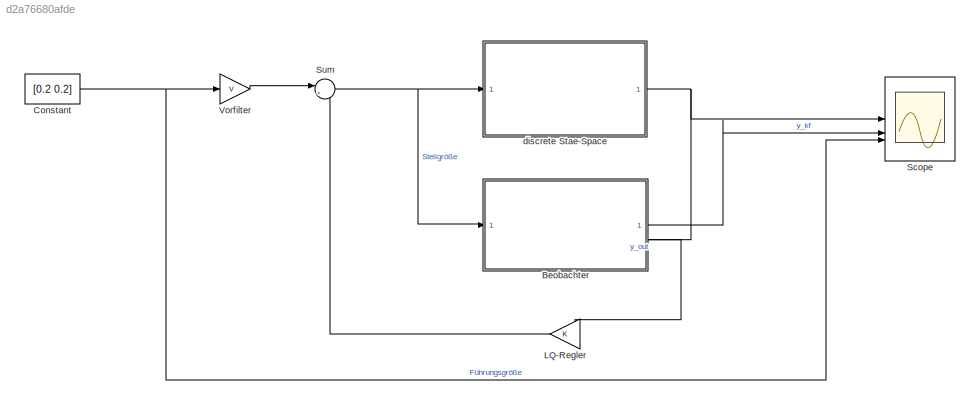
MODEL slx_d2a76680afde
KIND model
CONFIG AbsTol = auto
CONFIG EnableMultiTasking = off
CONFIG FixedStep = 1/30
CONFIG MaxStep = auto
CONFIG MinStep = auto
CONFIG RelTol = 1e-3
CONFIG SampleTimeConstraint = Unconstrained
CONFIG SolverName = FixedStepDiscrete
CONFIG StartTime = 0.0
CONFIG StopTime = 10
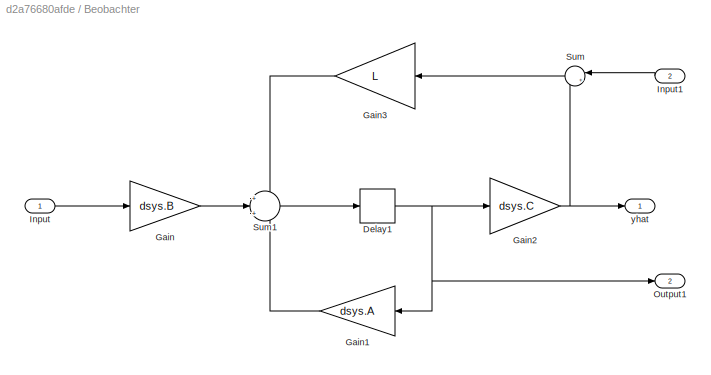
BLOCK [SubSystem] Beobachter
  PortSchema = {"entries":[{"content":{"sides":[{"content":{"connectorIds":["In1"]},"type":"ConnectorPlacement.EquallySpacedRectSide","uuid":"7e5694c5-51f3-4613-b5c8-acc747c9826e"},{"content":{"connectorIds":["In2","Out1","Out2"],"side":"RIGHT"},"type":"ConnectorPlacement.EquallySpacedRectSide","uuid":"58036581-f4bf-4920-a29f-01b8659c3d69"},{"content":{"side":"TOP"},"type":"ConnectorPlacement.EquallySpacedRectSi...<+235ch>
BLOCK [Delay] Beobachter/Delay1
  DelayLength = 1
  InitialCondition = x0_hat
  InputPortMap = u0
BLOCK [Gain] Beobachter/Gain
  Gain = dsys.B
  Multiplication = Matrix(K*u)
BLOCK [Gain] Beobachter/Gain1
  Gain = dsys.A
  Multiplication = Matrix(K*u)
  NameLocation = top
BLOCK [Gain] Beobachter/Gain2
  Gain = dsys.C
  Multiplication = Matrix(K*u)
BLOCK [Gain] Beobachter/Gain3
  Gain = L
  Multiplication = Matrix(K*u)
  NameLocation = top
BLOCK [Inport] Beobachter/Input
BLOCK [Inport] Beobachter/Input1
  NameLocation = top
  Port = 2
BLOCK [Outport] Beobachter/Output1
  Port = 2
BLOCK [Sum] Beobachter/Sum
  Inputs = |+-
  NameLocation = top
BLOCK [Sum] Beobachter/Sum1
  Inputs = +|+|+
BLOCK [Outport] Beobachter/yhat
BLOCK [Constant] Constant
  Value = [0.2 0.2]
BLOCK [Gain] LQ-Regler
  Gain = K
  Multiplication = Matrix(K*u)
BLOCK [Scope] Scope
  Floating = off
  NumInputPorts = 3
  ScopeSpecificationString = Simulink.scopes.TimeScopeBlockCfg('CurrentConfiguration', extmgr.ConfigurationSet(extmgr.Configuration('Core','General UI',true),extmgr.Configuration('Core','Source UI',true),extmgr.Configuration('Sources','WiredSimulink',true),extmgr.Configuration('Visuals','Time Domain',true,'PlotType','Line','SerializedDisplays',{struct('MinYLimReal','-0.02869','MaxYLimReal','0.25821','YLabelReal','','MinYLimMa...<+1967ch>
BLOCK [Sum] Sum
  Inputs = |+-
BLOCK [Gain] Vorfilter
  Gain = V
  Multiplication = Matrix(K*u)
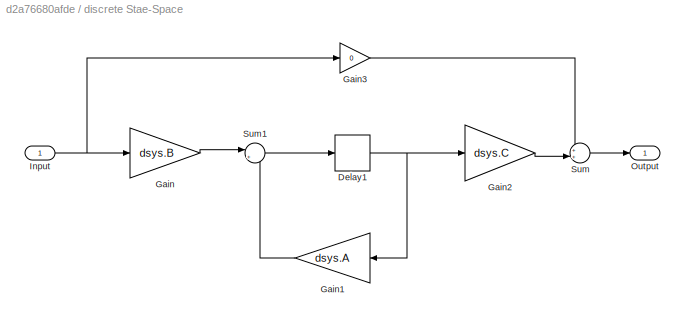
BLOCK [SubSystem] discrete Stae-Space
BLOCK [Delay] discrete Stae-Space/Delay1
  DelayLength = 1
  InitialCondition = x0
  InputPortMap = u0
BLOCK [Gain] discrete Stae-Space/Gain
  Gain = dsys.B
  Multiplication = Matrix(K*u)
BLOCK [Gain] discrete Stae-Space/Gain1
  Gain = dsys.A
  Multiplication = Matrix(K*u)
  NameLocation = top
BLOCK [Gain] discrete Stae-Space/Gain2
  Gain = dsys.C
  Multiplication = Matrix(K*u)
BLOCK [Gain] discrete Stae-Space/Gain3
  Gain = 0
BLOCK [Inport] discrete Stae-Space/Input
BLOCK [Outport] discrete Stae-Space/Output
BLOCK [Sum] discrete Stae-Space/Sum
  Inputs = ++|
BLOCK [Sum] discrete Stae-Space/Sum1
  Inputs = |++
NET Beobachter/Delay1:1 -> Beobachter/Gain1:1, Beobachter/Gain2:1, Beobachter/Output1:1
LINE Beobachter/Gain1:1 -> Beobachter/Sum1:3
NET Beobachter/Gain2:1 -> Beobachter/Sum:2, Beobachter/yhat:1
LINE Beobachter/Gain3:1 -> Beobachter/Sum1:1
LINE Beobachter/Gain:1 -> Beobachter/Sum1:2
LINE Beobachter/Input1:1 -> Beobachter/Sum:1
LINE Beobachter/Input:1 -> Beobachter/Gain:1
LINE Beobachter/Sum1:1 -> Beobachter/Delay1:1
LINE Beobachter/Sum:1 -> Beobachter/Gain3:1
LINE Beobachter:1 -> Scope:2
LINE Beobachter:2 -> LQ-Regler:1
NET Constant:1 -> Scope:3, Vorfilter:1
LINE LQ-Regler:1 -> Sum:2
NET Sum:1 -> Beobachter:1, discrete Stae-Space:1
LINE Vorfilter:1 -> Sum:1
NET discrete Stae-Space/Delay1:1 -> discrete Stae-Space/Gain1:1, discrete Stae-Space/Gain2:1
LINE discrete Stae-Space/Gain1:1 -> discrete Stae-Space/Sum1:2
LINE discrete Stae-Space/Gain2:1 -> discrete Stae-Space/Sum:2
LINE discrete Stae-Space/Gain3:1 -> discrete Stae-Space/Sum:1
LINE discrete Stae-Space/Gain:1 -> discrete Stae-Space/Sum1:1
NET discrete Stae-Space/Input:1 -> discrete Stae-Space/Gain3:1, discrete Stae-Space/Gain:1
LINE discrete Stae-Space/Sum1:1 -> discrete Stae-Space/Delay1:1
LINE discrete Stae-Space/Sum:1 -> discrete Stae-Space/Output:1
NET discrete Stae-Space:1 -> Beobachter:2, Scope:1
note: NET lines group one-source signal fan-out (src -> all destinations, sorted); 1:1 wires keep LINE
